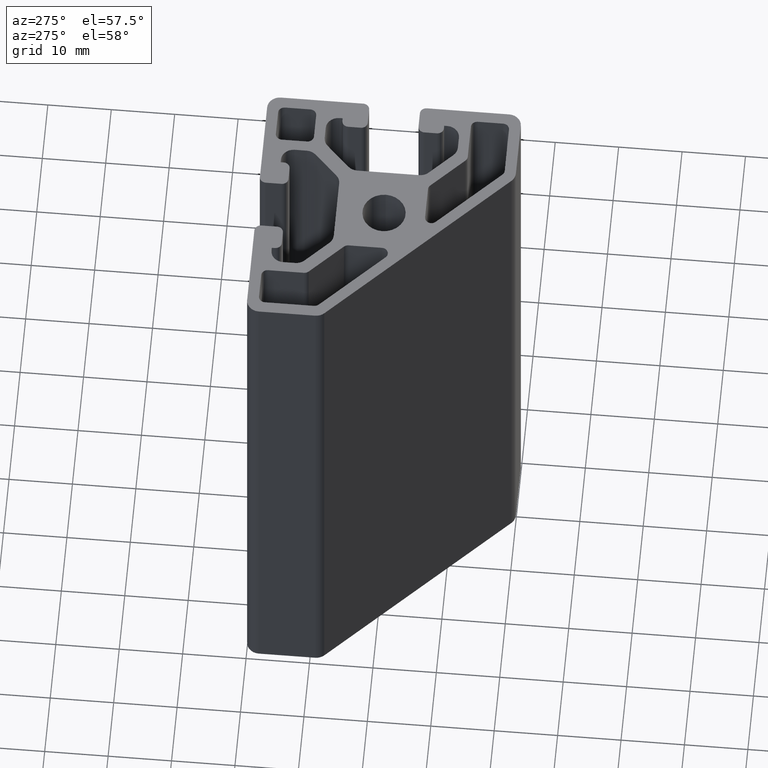
[diagram: clean part render]
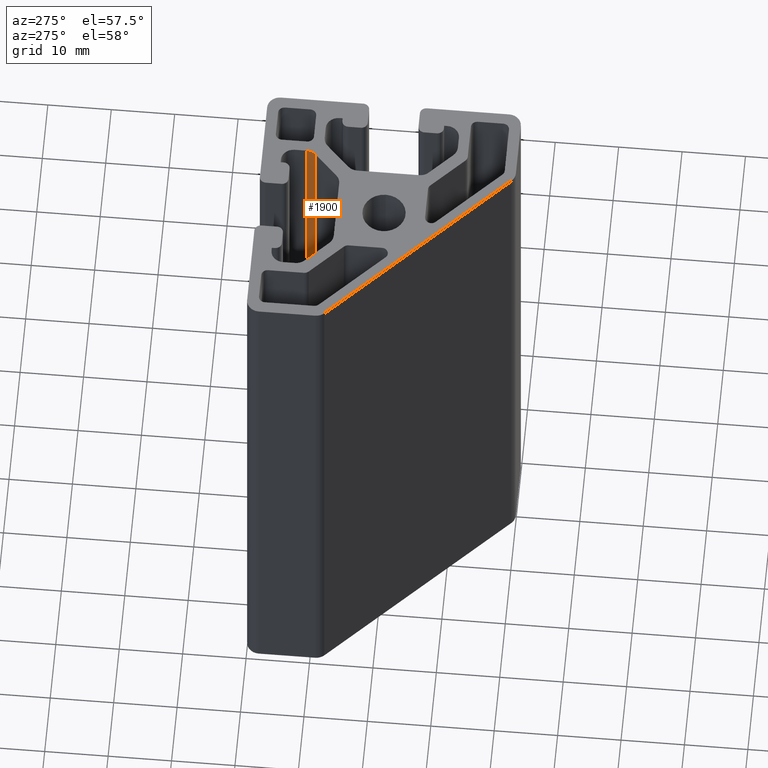
[diagram: same view with one face highlighted and labeled with its STEP entity id]
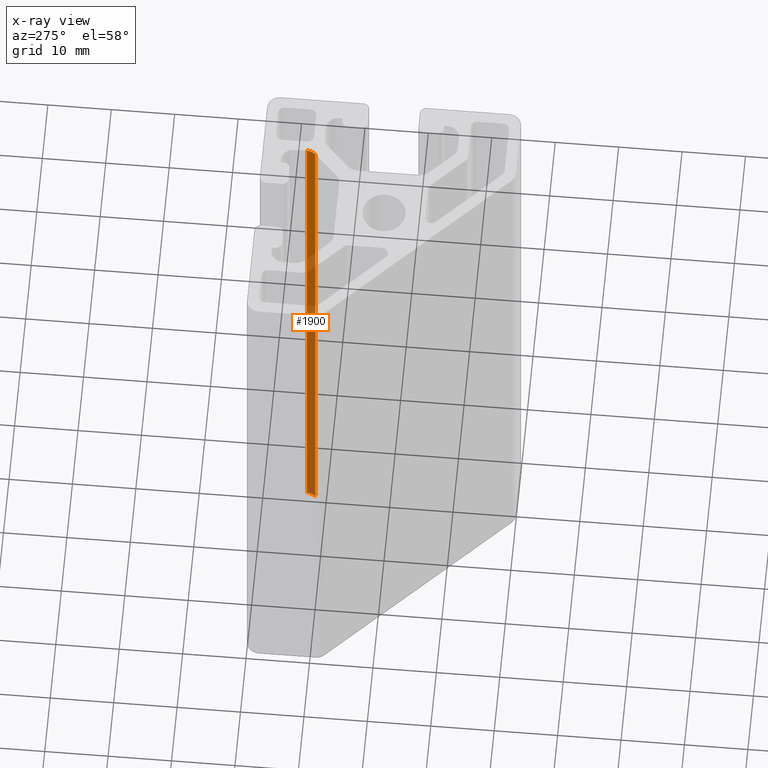
[diagram: x-ray of the same camera — body ghosted, the highlighted face saturated]
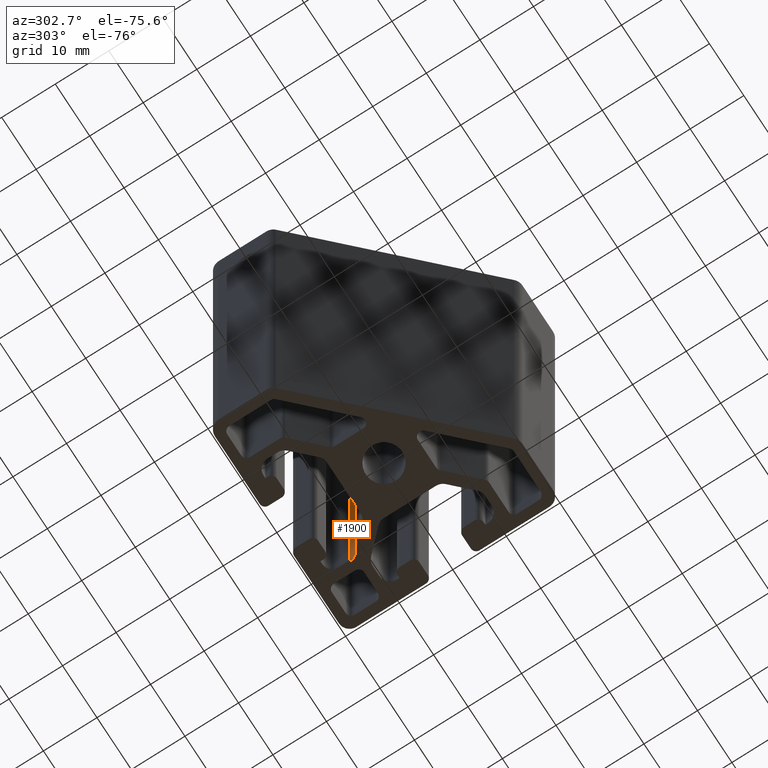
[diagram: same view with one face highlighted and labeled with its STEP entity id]
A machine part, auxiliary view. The second image highlights one B-rep face of the part: STEP entity #1900.
The next image is the same camera in x-ray: the body ghosted, the highlighted face saturated — about 70% of this face is hidden behind the body in this view.
A second angle (auxiliary view) of the same face is appended — the face is thin or edge-on in the first view.
In plain terms, the highlighted cylindrical surface (edge-blend (fillet) strip) has radius 2 mm, axis along (0, 0, 1).
Its self-contained STEP definition (entity closure, byte-faithful):
#133=FACE_OUTER_BOUND('',#231,.T.);
#231=EDGE_LOOP('',(#1458,#1459,#1460,#1461));
#395=LINE('',#3058,#587);
#396=LINE('',#3064,#588);
#587=VECTOR('',#2481,100.);
#588=VECTOR('',#2488,100.);
#720=CIRCLE('',#2058,2.);
#721=CIRCLE('',#2059,2.);
#874=VERTEX_POINT('',#3054);
#875=VERTEX_POINT('',#3056);
#876=VERTEX_POINT('',#3060);
#877=VERTEX_POINT('',#3062);
#1119=EDGE_CURVE('',#875,#874,#395,.T.);
#1120=EDGE_CURVE('',#874,#876,#720,.T.);
#1121=EDGE_CURVE('',#877,#875,#721,.T.);
#1122=EDGE_CURVE('',#877,#876,#396,.T.);
#1458=ORIENTED_EDGE('',*,*,#1120,.F.);
#1459=ORIENTED_EDGE('',*,*,#1119,.F.);
#1460=ORIENTED_EDGE('',*,*,#1121,.F.);
#1461=ORIENTED_EDGE('',*,*,#1122,.T.);
#1825=CYLINDRICAL_SURFACE('',#2057,2.);
#1900=ADVANCED_FACE('',(#133),#1825,.F.);
#2057=AXIS2_PLACEMENT_3D('',#3059,#2482,#2483);
#2058=AXIS2_PLACEMENT_3D('',#3061,#2484,#2485);
#2059=AXIS2_PLACEMENT_3D('',#3063,#2486,#2487);
#2481=DIRECTION('',(0.,0.,1.));
#2482=DIRECTION('center_axis',(0.,0.,1.));
#2483=DIRECTION('ref_axis',(0.707106781186546,-0.707106781186549,0.));
#2484=DIRECTION('center_axis',(0.,0.,-1.));
#2485=DIRECTION('ref_axis',(0.707106781186546,-0.707106781186549,0.));
#2486=DIRECTION('center_axis',(0.,0.,1.));
#2487=DIRECTION('ref_axis',(0.707106781186546,-0.707106781186549,0.));
#2488=DIRECTION('',(0.,0.,1.));
#3054=CARTESIAN_POINT('',(10.5,13.0961940777126,100.));
#3056=CARTESIAN_POINT('',(10.5,13.0961940777126,0.));
#3058=CARTESIAN_POINT('',(10.5,13.0961940777126,0.));
#3059=CARTESIAN_POINT('Origin',(8.5,13.0961940777126,0.));
#3060=CARTESIAN_POINT('',(9.9142135623731,11.6819805153395,100.));
#3061=CARTESIAN_POINT('Origin',(8.5,13.0961940777126,100.));
#3062=CARTESIAN_POINT('',(9.9142135623731,11.6819805153395,0.));
#3063=CARTESIAN_POINT('Origin',(8.5,13.0961940777126,0.));
#3064=CARTESIAN_POINT('',(9.9142135623731,11.6819805153395,0.));